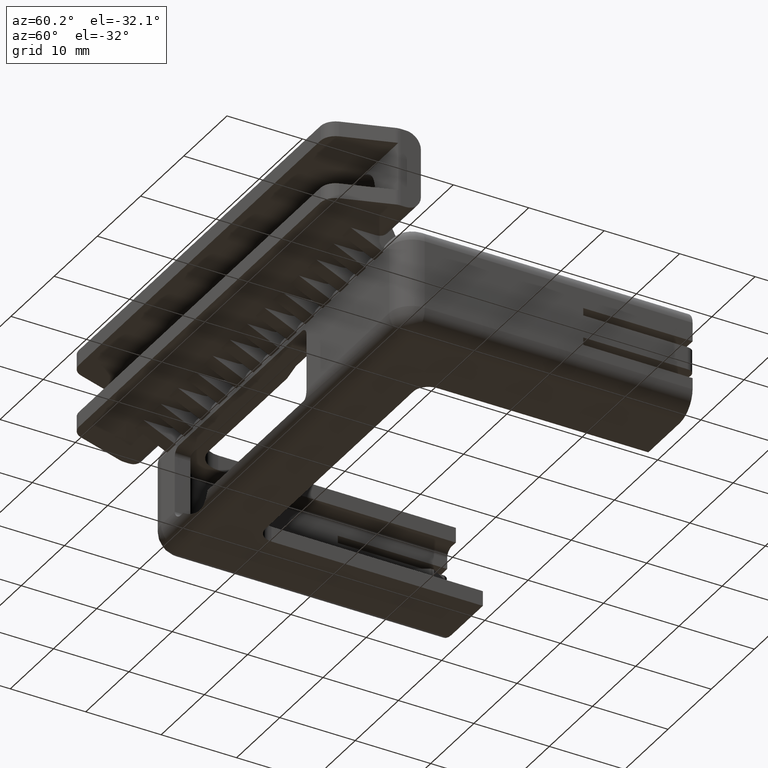
[diagram: clean part render]
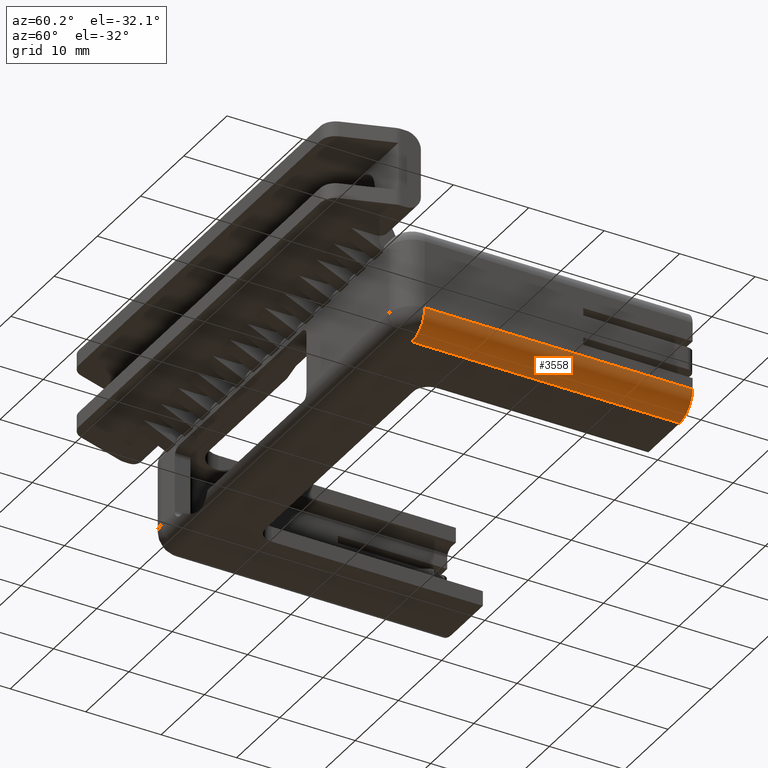
[diagram: same view with one face highlighted and labeled with its STEP entity id]
A machine part, auxiliary view. The second image highlights one B-rep face of the part: STEP entity #3558.
In plain terms, the highlighted cylindrical surface (edge-blend (fillet) strip) has radius 3 mm, axis along (0, 1, 0).
Its self-contained STEP definition (entity closure, byte-faithful):
#488=CIRCLE('',#3765,0.3);
#497=CIRCLE('',#3785,0.3);
#606=CYLINDRICAL_SURFACE('',#3784,0.3);
#732=VERTEX_POINT('',#5418);
#733=VERTEX_POINT('',#5420);
#736=VERTEX_POINT('',#5440);
#742=VERTEX_POINT('',#5470);
#1053=VECTOR('',#4237,1.);
#1054=VECTOR('',#4240,1.);
#1368=LINE('',#5469,#1053);
#1369=LINE('',#5472,#1054);
#1711=EDGE_CURVE('',#733,#732,#488,.T.);
#1734=EDGE_CURVE('',#732,#742,#1368,.T.);
#1735=EDGE_CURVE('',#742,#736,#497,.T.);
#1736=EDGE_CURVE('',#736,#733,#1369,.T.);
#2327=ORIENTED_EDGE('',*,*,#1711,.T.);
#2328=ORIENTED_EDGE('',*,*,#1734,.T.);
#2329=ORIENTED_EDGE('',*,*,#1735,.T.);
#2330=ORIENTED_EDGE('',*,*,#1736,.T.);
#3168=EDGE_LOOP('',(#2327,#2328,#2329,#2330));
#3364=FACE_BOUND('',#3168,.T.);
#3558=ADVANCED_FACE('',(#3364),#606,.T.);
#3765=AXIS2_PLACEMENT_3D('',#5419,#4191,#4192);
#3784=AXIS2_PLACEMENT_3D('',#5468,#4235,#4236);
#3785=AXIS2_PLACEMENT_3D('',#5471,#4238,#4239);
#4191=DIRECTION('',(0.,-1.,0.));
#4192=DIRECTION('',(0.212132034355964,0.,-0.212132034355964));
#4235=DIRECTION('',(0.,1.,0.));
#4236=DIRECTION('',(0.212132034355964,0.,-0.212132034355964));
#4237=DIRECTION('',(0.,-1.,0.));
#4238=DIRECTION('',(0.,1.,0.));
#4239=DIRECTION('',(0.3,0.,0.));
#4240=DIRECTION('',(0.,1.,0.));
#5418=CARTESIAN_POINT('',(2.94,1.925,0.3));
#5419=CARTESIAN_POINT('',(2.64,1.925,0.3));
#5420=CARTESIAN_POINT('',(2.64,1.925,0.));
#5440=CARTESIAN_POINT('',(2.64,-1.625,0.));
#5468=CARTESIAN_POINT('',(2.64,0.,0.3));
#5469=CARTESIAN_POINT('',(2.94,0.,0.3));
#5470=CARTESIAN_POINT('',(2.94,-1.625,0.3));
#5471=CARTESIAN_POINT('',(2.64,-1.625,0.3));
#5472=CARTESIAN_POINT('',(2.64,0.,0.));